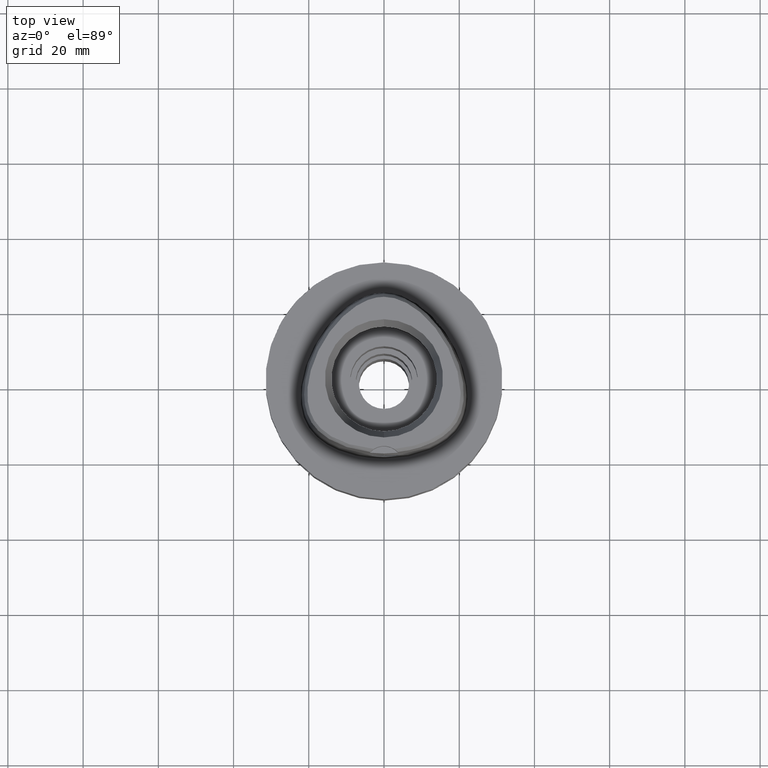
[diagram: clean part render]
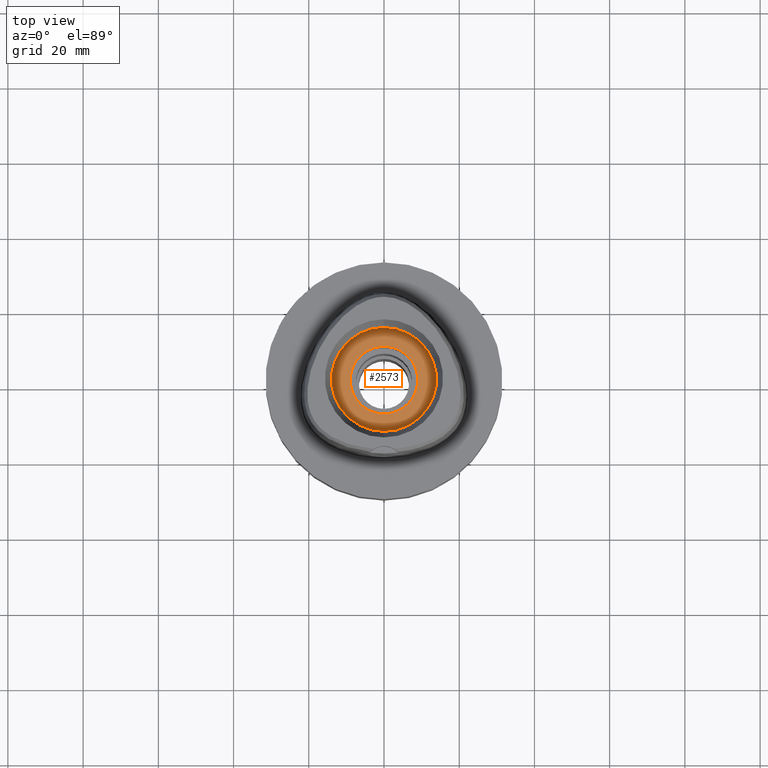
[diagram: same view with one face highlighted and labeled with its STEP entity id]
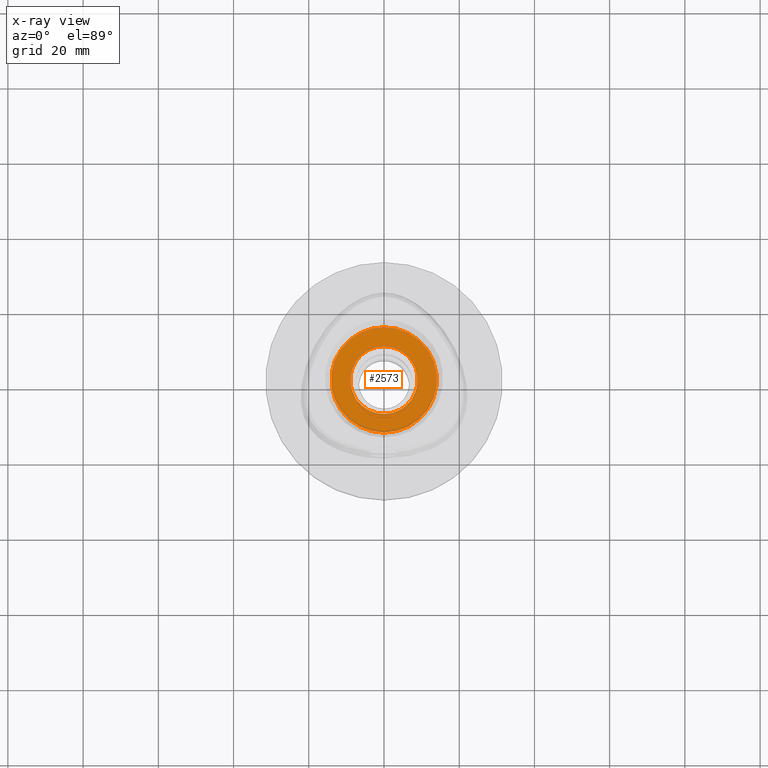
[diagram: x-ray of the same camera — body ghosted, the highlighted face saturated]
A machine part, top view. The second image highlights one B-rep face of the part: STEP entity #2573.
The next image is the same camera in x-ray: the body ghosted, the highlighted face saturated — about 0% of this face is hidden behind the body in this view.
In plain terms, the highlighted planar face has unit normal (0, 0, -1).
Its self-contained STEP definition (entity closure, byte-faithful):
#373 = DIRECTION ( 'NONE',  ( 0.0000000000000000000, 1.000000000000000000, 0.0000000000000000000 ) ) ;
#416 = VERTEX_POINT ( 'NONE', #2528 ) ;
#536 = FACE_OUTER_BOUND ( 'NONE', #3686, .T. ) ;
#726 = CIRCLE ( 'NONE', #3926, 9.000000000000000000 ) ;
#933 = DIRECTION ( 'NONE',  ( 0.0000000000000000000, 0.0000000000000000000, -1.000000000000000000 ) ) ;
#954 = ORIENTED_EDGE ( 'NONE', *, *, #2128, .F. ) ;
#1116 = ORIENTED_EDGE ( 'NONE', *, *, #2588, .F. ) ;
#1214 = CARTESIAN_POINT ( 'NONE',  ( 0.0000000000000000000, 0.0000000000000000000, 11.00000000000000000 ) ) ;
#1266 = DIRECTION ( 'NONE',  ( 0.0000000000000000000, 0.0000000000000000000, 1.000000000000000000 ) ) ;
#1508 = CARTESIAN_POINT ( 'NONE',  ( 0.0000000000000000000, 0.0000000000000000000, 11.00000000000000000 ) ) ;
#1533 = DIRECTION ( 'NONE',  ( 0.0000000000000000000, 0.0000000000000000000, -1.000000000000000000 ) ) ;
#1659 = ORIENTED_EDGE ( 'NONE', *, *, #2641, .F. ) ;
#1698 = FACE_BOUND ( 'NONE', #2880, .T. ) ;
#1729 = CARTESIAN_POINT ( 'NONE',  ( 0.0000000000000000000, -9.000000000000000000, 11.00000000000000000 ) ) ;
#1784 = CIRCLE ( 'NONE', #3745, 9.000000000000000000 ) ;
#1805 = CARTESIAN_POINT ( 'NONE',  ( 0.0000000000000000000, -14.00000000000000000, 11.00000000000000000 ) ) ;
#2004 = DIRECTION ( 'NONE',  ( 0.0000000000000000000, 0.0000000000000000000, -1.000000000000000000 ) ) ;
#2026 = DIRECTION ( 'NONE',  ( 0.0000000000000000000, -1.000000000000000000, 0.0000000000000000000 ) ) ;
#2098 = DIRECTION ( 'NONE',  ( 0.0000000000000000000, -1.000000000000000000, 0.0000000000000000000 ) ) ;
#2128 = EDGE_CURVE ( 'NONE', #2703, #4604, #4007, .T. ) ;
#2216 = DIRECTION ( 'NONE',  ( 0.0000000000000000000, 0.0000000000000000000, 1.000000000000000000 ) ) ;
#2429 = AXIS2_PLACEMENT_3D ( 'NONE', #1214, #2004, #2098 ) ;
#2433 = DIRECTION ( 'NONE',  ( 0.0000000000000000000, -1.000000000000000000, 0.0000000000000000000 ) ) ;
#2528 = CARTESIAN_POINT ( 'NONE',  ( 0.0000000000000000000, 9.000000000000000000, 11.00000000000000000 ) ) ;
#2573 = ADVANCED_FACE ( 'NONE', ( #536, #1698 ), #4750, .F. ) ;
#2588 = EDGE_CURVE ( 'NONE', #4604, #2703, #4645, .T. ) ;
#2641 = EDGE_CURVE ( 'NONE', #4619, #416, #1784, .T. ) ;
#2703 = VERTEX_POINT ( 'NONE', #4798 ) ;
#2880 = EDGE_LOOP ( 'NONE', ( #1659, #3667 ) ) ;
#2963 = CARTESIAN_POINT ( 'NONE',  ( 0.0000000000000000000, 0.0000000000000000000, 11.00000000000000000 ) ) ;
#3294 = DIRECTION ( 'NONE',  ( 0.0000000000000000000, 1.000000000000000000, 0.0000000000000000000 ) ) ;
#3496 = AXIS2_PLACEMENT_3D ( 'NONE', #1508, #1533, #373 ) ;
#3667 = ORIENTED_EDGE ( 'NONE', *, *, #3901, .F. ) ;
#3686 = EDGE_LOOP ( 'NONE', ( #1116, #954 ) ) ;
#3745 = AXIS2_PLACEMENT_3D ( 'NONE', #4774, #1266, #2433 ) ;
#3901 = EDGE_CURVE ( 'NONE', #416, #4619, #726, .T. ) ;
#3926 = AXIS2_PLACEMENT_3D ( 'NONE', #2963, #2216, #3294 ) ;
#4007 = CIRCLE ( 'NONE', #3496, 14.00000000000000000 ) ;
#4604 = VERTEX_POINT ( 'NONE', #1805 ) ;
#4619 = VERTEX_POINT ( 'NONE', #1729 ) ;
#4645 = CIRCLE ( 'NONE', #2429, 14.00000000000000000 ) ;
#4750 = PLANE ( 'NONE',  #5064 ) ;
#4774 = CARTESIAN_POINT ( 'NONE',  ( 0.0000000000000000000, 0.0000000000000000000, 11.00000000000000000 ) ) ;
#4798 = CARTESIAN_POINT ( 'NONE',  ( 0.0000000000000000000, 14.00000000000000000, 11.00000000000000000 ) ) ;
#4825 = CARTESIAN_POINT ( 'NONE',  ( 0.0000000000000000000, 0.0000000000000000000, 11.00000000000000000 ) ) ;
#5064 = AXIS2_PLACEMENT_3D ( 'NONE', #4825, #933, #2026 ) ;